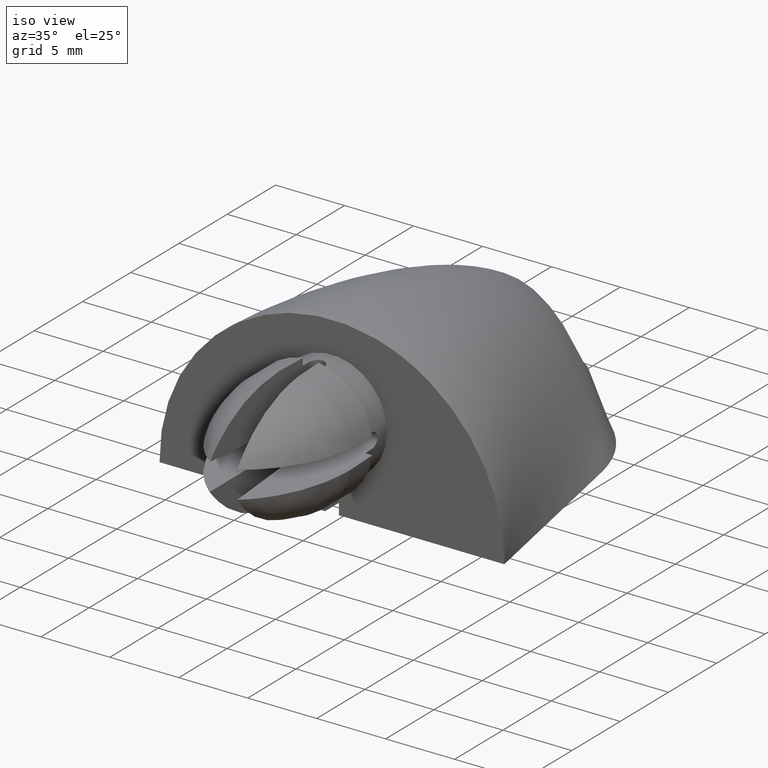
[diagram: clean part render]
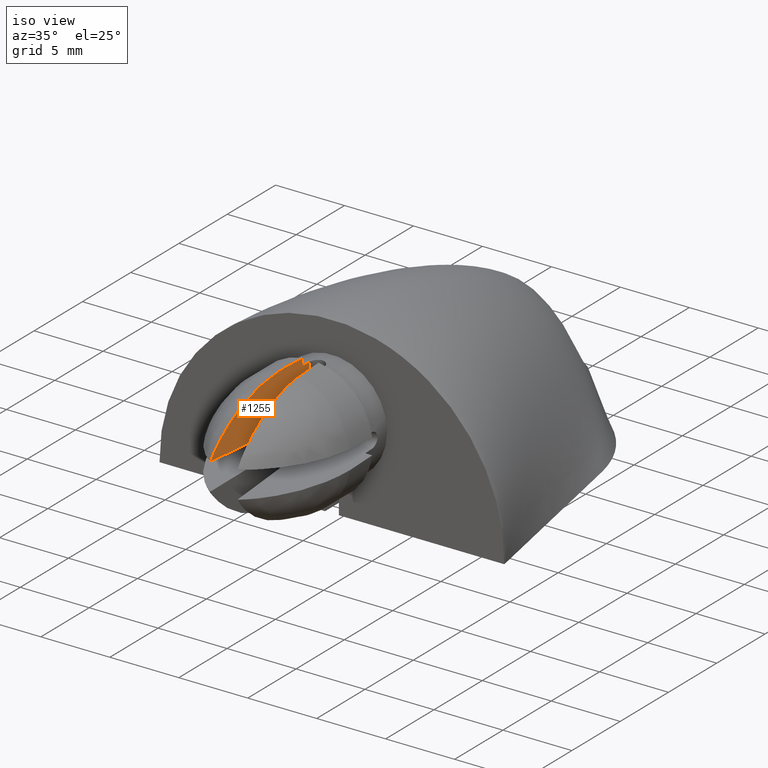
[diagram: same view with one face highlighted and labeled with its STEP entity id]
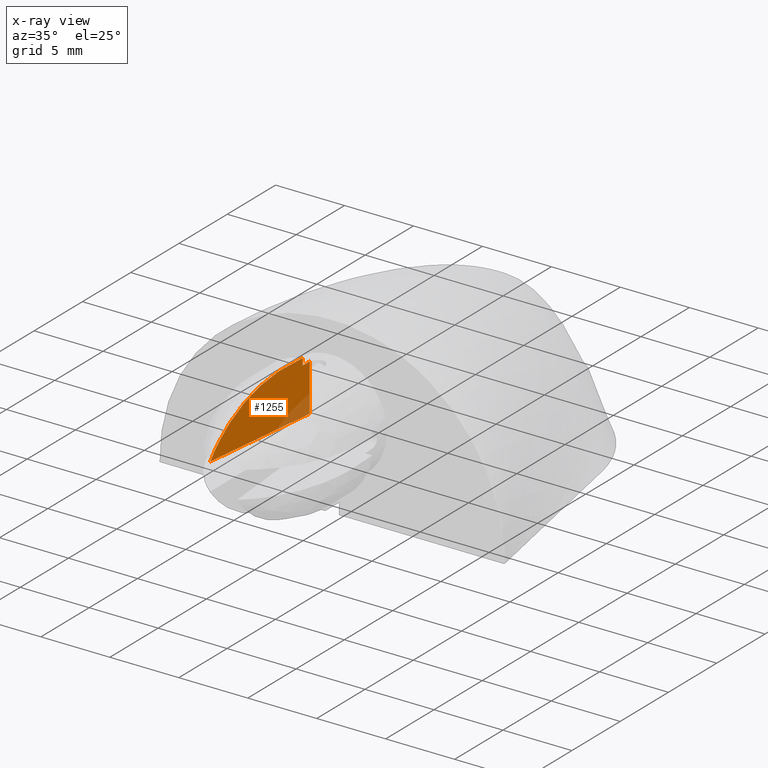
[diagram: x-ray of the same camera — body ghosted, the highlighted face saturated]
A machine part, iso view. The second image highlights one B-rep face of the part: STEP entity #1255.
The next image is the same camera in x-ray: the body ghosted, the highlighted face saturated — about 9% of this face is hidden behind the body in this view.
In plain terms, the highlighted planar face has unit normal (-0.999, 0.0452, 0).
Its self-contained STEP definition (entity closure, byte-faithful):
#264=CARTESIAN_POINT('',(-0.983063032099729,-23.177248540654844,7.408319054697522));
#265=VERTEX_POINT('',#264);
#273=CARTESIAN_POINT('',(-0.680637247930036,-16.500313095813041,10.847820371910991));
#274=VERTEX_POINT('',#273);
#275=CARTESIAN_POINT('',(-0.680637247930036,-16.500313095813041,10.847820371910991));
#276=CARTESIAN_POINT('',(-0.687159326163673,-16.644307085782359,10.837504180187814));
#277=CARTESIAN_POINT('',(-0.705034737999604,-17.038959185986691,10.801823210754002));
#278=CARTESIAN_POINT('',(-0.731944538098418,-17.633071882384748,10.715876203228810));
#279=CARTESIAN_POINT('',(-0.762681300447611,-18.311675985379196,10.571522607525615));
#280=CARTESIAN_POINT('',(-0.792222026792530,-18.963874088594430,10.386349358528939));
#281=CARTESIAN_POINT('',(-0.821951205716324,-19.620232834748613,10.145376742298907));
#282=CARTESIAN_POINT('',(-0.850698471208325,-20.254912964397121,9.856314097464285));
#283=CARTESIAN_POINT('',(-0.878476075340977,-20.868184977943493,9.517740470398216));
#284=CARTESIAN_POINT('',(-0.905236090698693,-21.458990737237293,9.126490881753981));
#285=CARTESIAN_POINT('',(-0.926702151269275,-21.932916930661605,8.753998491175501));
#286=CARTESIAN_POINT('',(-0.943089542749867,-22.294716620875263,8.429275136497331));
#287=CARTESIAN_POINT('',(-0.956679753849194,-22.594760357030893,8.132620088368405));
#288=CARTESIAN_POINT('',(-0.967898648189767,-22.842450326588420,7.856326172594734));
#289=CARTESIAN_POINT('',(-0.977012348618942,-23.043661971277864,7.600420252111825));
#290=CARTESIAN_POINT('',(-0.981121941085796,-23.134393268151548,7.472648388625110));
#291=CARTESIAN_POINT('',(-0.983063032099729,-23.177248540654844,7.408319054697522));
#292=B_SPLINE_CURVE_WITH_KNOTS('',3,(#275,#276,#277,#278,#279,#280,#281,#282,#283,#284,#285,#286,#287,#288,#289,#290,#291),.UNSPECIFIED.,.F.,.U.,(4,1,1,1,1,1,1,1,1,1,1,1,1,1,4),(0.0,4.335566304299722,11.897358534089799,18.016116681693525,25.159958160891719,32.242072837596126,38.995684441038975,46.085391535253528,53.257706944614554,60.251551534165102,64.165482713334654,67.846172753997237,72.912856374946543,75.293753311656417,77.613674784888133),.UNSPECIFIED.);
#293=EDGE_CURVE('',#274,#265,#292,.T.);
#470=CARTESIAN_POINT('',(-0.576460817090386,-14.200313095812774,10.862516563910866));
#471=VERTEX_POINT('',#470);
#472=CARTESIAN_POINT('',(-0.576460817090386,-14.200313095812334,10.862516563910866));
#473=CARTESIAN_POINT('',(-0.628634935925234,-15.352209665439666,10.855777408728748));
#474=CARTESIAN_POINT('',(-0.680637247930036,-16.500313095813041,10.847820371910991));
#482=(BOUNDED_CURVE()B_SPLINE_CURVE(2,(#472,#473,#474),.UNSPECIFIED.,.F.,.U.)CURVE()GEOMETRIC_REPRESENTATION_ITEM()QUASI_UNIFORM_CURVE()RATIONAL_B_SPLINE_CURVE((1.0,0.999931672315707,1.0))REPRESENTATION_ITEM(''));
#483=EDGE_CURVE('',#471,#274,#482,.T.);
#612=CARTESIAN_POINT('',(-0.576460817090393,-14.200313095812774,10.357835972260553));
#613=VERTEX_POINT('',#612);
#614=CARTESIAN_POINT('',(-0.576460817090386,-14.200313095812774,10.862516563910866));
#615=DIRECTION('',(0.0,0.0,-1.0));
#616=VECTOR('',#615,0.504680591650313);
#617=LINE('',#614,#616);
#618=EDGE_CURVE('',#471,#613,#617,.T.);
#689=CARTESIAN_POINT('',(-0.983063032099729,-23.177248540654844,7.390058161639665));
#690=VERTEX_POINT('',#689);
#697=CARTESIAN_POINT('',(-0.983063032099729,-23.177248540654844,7.408319054697522));
#698=DIRECTION('',(0.0,0.0,-1.0));
#699=VECTOR('',#698,0.018260893057857);
#700=LINE('',#697,#699);
#701=EDGE_CURVE('',#265,#690,#700,.T.);
#750=CARTESIAN_POINT('',(-0.545732086754612,-13.521886323051802,6.952727216294299));
#751=VERTEX_POINT('',#750);
#758=CARTESIAN_POINT('',(-0.545732086754612,-13.521886323051802,6.952727216294299));
#759=DIRECTION('',(-0.045201461984970,-0.997954736282583,0.045201461984995));
#760=VECTOR('',#759,9.675150451782621);
#761=LINE('',#758,#760);
#762=EDGE_CURVE('',#751,#690,#761,.T.);
#1171=CARTESIAN_POINT('',(-0.545732086754612,-13.521886323051802,10.362189495886689));
#1172=VERTEX_POINT('',#1171);
#1193=CARTESIAN_POINT('',(-0.545732086754612,-13.521886323051802,6.952727216294299));
#1194=DIRECTION('',(0.0,0.0,1.0));
#1195=VECTOR('',#1194,3.409462279592390);
#1196=LINE('',#1193,#1195);
#1197=EDGE_CURVE('',#751,#1172,#1196,.T.);
#1229=CARTESIAN_POINT('',(-0.523865539487332,-13.039118212171175,6.757237748913482));
#1230=DIRECTION('',(-0.998975797872567,0.045247710051106,0.0));
#1231=DIRECTION('',(-0.045247710051106,-0.998975797872567,0.0));
#1232=AXIS2_PLACEMENT_3D('',#1229,#1230,#1231);
#1233=PLANE('',#1232);
#1234=ORIENTED_EDGE('',*,*,#1197,.T.);
#1235=CARTESIAN_POINT('',(-0.545732086754597,-13.521886323051362,10.362189495886689));
#1236=CARTESIAN_POINT('',(-0.561104896622751,-13.861286150937715,10.360072339795259));
#1237=CARTESIAN_POINT('',(-0.576460817090393,-14.200313095812746,10.357835972260553));
#1245=(BOUNDED_CURVE()B_SPLINE_CURVE(2,(#1235,#1236,#1237),.UNSPECIFIED.,.F.,.U.)CURVE()GEOMETRIC_REPRESENTATION_ITEM()QUASI_UNIFORM_CURVE()RATIONAL_B_SPLINE_CURVE((1.0,0.999992474918907,1.0))REPRESENTATION_ITEM(''));
#1246=EDGE_CURVE('',#1172,#613,#1245,.T.);
#1247=ORIENTED_EDGE('',*,*,#1246,.T.);
#1248=ORIENTED_EDGE('',*,*,#618,.F.);
#1249=ORIENTED_EDGE('',*,*,#483,.T.);
#1250=ORIENTED_EDGE('',*,*,#293,.T.);
#1251=ORIENTED_EDGE('',*,*,#701,.T.);
#1252=ORIENTED_EDGE('',*,*,#762,.F.);
#1253=EDGE_LOOP('',(#1234,#1247,#1248,#1249,#1250,#1251,#1252));
#1254=FACE_OUTER_BOUND('',#1253,.T.);
#1255=ADVANCED_FACE('',(#1254),#1233,.F.);